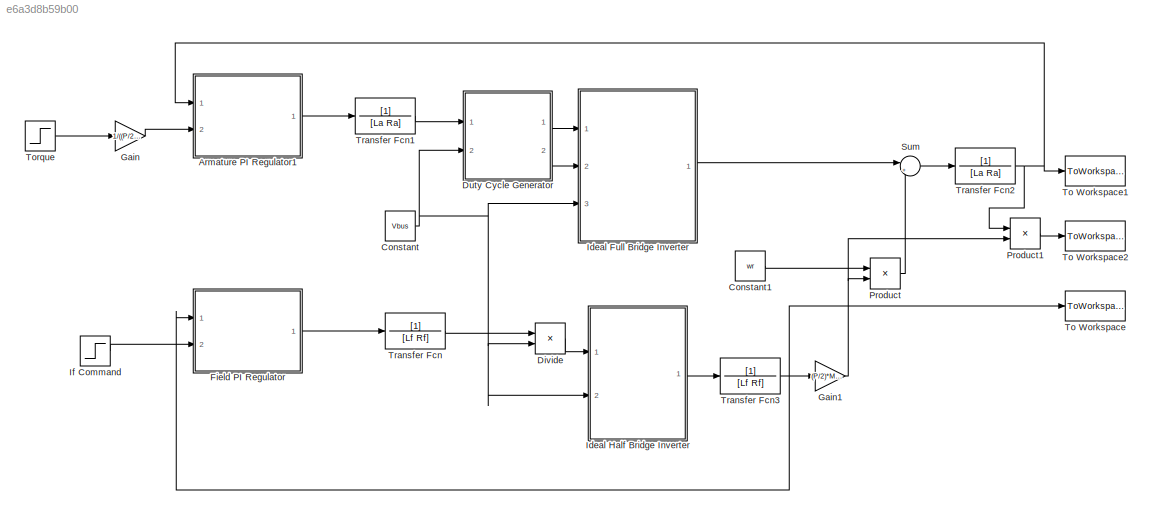
MODEL slx_e6a3d8b59b00
KIND model
CONFIG AbsTol = auto
CONFIG FixedStep = auto
CONFIG MaxStep = auto
CONFIG MinStep = auto
CONFIG RelTol = 1e-3
CONFIG SampleTimeConstraint = Unconstrained
CONFIG Solver = VariableStepAuto
CONFIG SolverMode = Auto
CONFIG SolverName = VariableStepAuto
CONFIG StartTime = 0.0
CONFIG StopTime = .2
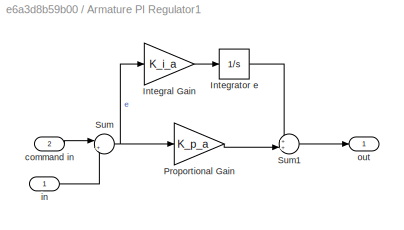
BLOCK [SubSystem] Armature PI Regulator1
  Ports = [2, 1]
  RequestExecContextInheritance = off
  Variant = off
BLOCK [Gain] Armature PI Regulator1/Integral Gain
  Gain = K_i_a
BLOCK [Integrator] Armature PI Regulator1/Integrator e
  Ports = [1, 1]
BLOCK [Gain] Armature PI Regulator1/Proportional Gain
  Gain = K_p_a
BLOCK [Sum] Armature PI Regulator1/Sum
  IconShape = round
  InputSameDT = off
  Inputs = |+-
  OutDataTypeStr = Inherit: Inherit via internal rule
  Ports = [2, 1]
BLOCK [Sum] Armature PI Regulator1/Sum1
  IconShape = round
  InputSameDT = off
  Inputs = ++|
  OutDataTypeStr = Inherit: Inherit via internal rule
  Ports = [2, 1]
BLOCK [Inport] Armature PI Regulator1/command in
  IconDisplay = Port number
  Port = 2
BLOCK [Inport] Armature PI Regulator1/in
  IconDisplay = Port number
BLOCK [Outport] Armature PI Regulator1/out
  IconDisplay = Port number
BLOCK [Constant] Constant
  Value = Vbus
BLOCK [Constant] Constant1
  Value = wr
BLOCK [Product] Divide
  InputSameDT = off
  Inputs = */
  OutDataTypeStr = Inherit: Inherit via internal rule
  Ports = [2, 1]
  RndMeth = Floor
  SaturateOnIntegerOverflow = off
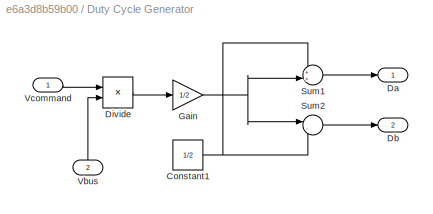
BLOCK [SubSystem] Duty Cycle Generator 
  Ports = [2, 2]
  RequestExecContextInheritance = off
  Variant = off
BLOCK [Constant] Duty Cycle Generator /Constant1
  Value = 1/2
BLOCK [Outport] Duty Cycle Generator /Da
  IconDisplay = Port number
BLOCK [Outport] Duty Cycle Generator /Db
  IconDisplay = Port number
  Port = 2
BLOCK [Product] Duty Cycle Generator /Divide
  InputSameDT = off
  Inputs = */
  OutDataTypeStr = Inherit: Inherit via internal rule
  Ports = [2, 1]
  RndMeth = Floor
  SaturateOnIntegerOverflow = off
BLOCK [Gain] Duty Cycle Generator /Gain
  Gain = 1/2
  OutDataTypeStr = Inherit: Inherit via internal rule
  ParamDataTypeStr = Inherit: Inherit via internal rule
  SaturateOnIntegerOverflow = off
BLOCK [Sum] Duty Cycle Generator /Sum1
  IconShape = round
  InputSameDT = off
  Inputs = ++|
  OutDataTypeStr = Inherit: Inherit via internal rule
  Ports = [2, 1]
  SaturateOnIntegerOverflow = off
BLOCK [Sum] Duty Cycle Generator /Sum2
  IconShape = round
  InputSameDT = off
  Inputs = |-+
  OutDataTypeStr = Inherit: Inherit via internal rule
  Ports = [2, 1]
  SaturateOnIntegerOverflow = off
BLOCK [Inport] Duty Cycle Generator /Vbus
  IconDisplay = Port number
  Port = 2
BLOCK [Inport] Duty Cycle Generator /Vcommand
  IconDisplay = Port number
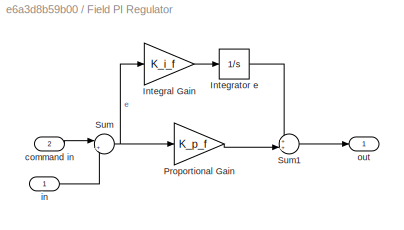
BLOCK [SubSystem] Field PI Regulator
  Ports = [2, 1]
  RequestExecContextInheritance = off
  Variant = off
BLOCK [Gain] Field PI Regulator/Integral Gain
  Gain = K_i_f
BLOCK [Integrator] Field PI Regulator/Integrator e
  Ports = [1, 1]
BLOCK [Gain] Field PI Regulator/Proportional Gain
  Gain = K_p_f
BLOCK [Sum] Field PI Regulator/Sum
  IconShape = round
  InputSameDT = off
  Inputs = |+-
  OutDataTypeStr = Inherit: Inherit via internal rule
  Ports = [2, 1]
BLOCK [Sum] Field PI Regulator/Sum1
  IconShape = round
  InputSameDT = off
  Inputs = ++|
  OutDataTypeStr = Inherit: Inherit via internal rule
  Ports = [2, 1]
BLOCK [Inport] Field PI Regulator/command in
  IconDisplay = Port number
  Port = 2
BLOCK [Inport] Field PI Regulator/in
  IconDisplay = Port number
BLOCK [Outport] Field PI Regulator/out
  IconDisplay = Port number
BLOCK [Gain] Gain
  Gain = 1/((P/2)*Maf)
  OutDataTypeStr = Inherit: Inherit via internal rule
  ParamDataTypeStr = Inherit: Inherit via internal rule
  SaturateOnIntegerOverflow = off
BLOCK [Gain] Gain1
  Gain = (P/2)*Maf
  OutDataTypeStr = Inherit: Inherit via internal rule
  ParamDataTypeStr = Inherit: Inherit via internal rule
  SaturateOnIntegerOverflow = off
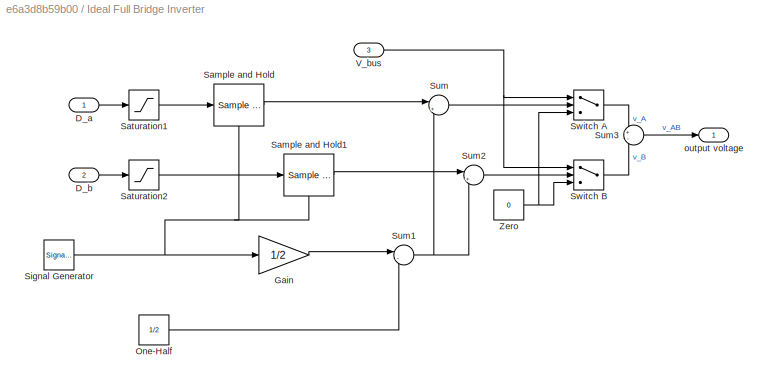
BLOCK [SubSystem] Ideal Full Bridge Inverter 
  Ports = [3, 1]
  RequestExecContextInheritance = off
  Variant = off
BLOCK [Inport] Ideal Full Bridge Inverter /D_a
  IconDisplay = Port number
BLOCK [Inport] Ideal Full Bridge Inverter /D_b
  IconDisplay = Port number
  Port = 2
BLOCK [Gain] Ideal Full Bridge Inverter /Gain
  Gain = 1/2
BLOCK [Constant] Ideal Full Bridge Inverter /One-Half
  Value = 1/2
BLOCK [Reference] Ideal Full Bridge Inverter /Sample and Hold  REF=dspsigops/Sample
and Hold
  Ports = [1, 1, 0, 1]
  SourceBlock = dspsigops/Sample\nand Hold
  SourceType = Sample and Hold
BLOCK [Reference] Ideal Full Bridge Inverter /Sample and Hold1  REF=dspsigops/Sample
and Hold
  Ports = [1, 1, 0, 1]
  SourceBlock = dspsigops/Sample\nand Hold
  SourceType = Sample and Hold
BLOCK [Saturate] Ideal Full Bridge Inverter /Saturation1
  InputPortMap = u0
  LowerLimit = 0
  Ports = [1, 1]
  UpperLimit = 1
BLOCK [Saturate] Ideal Full Bridge Inverter /Saturation2
  InputPortMap = u0
  LowerLimit = 0
  Ports = [1, 1]
  UpperLimit = 1
BLOCK [SignalGenerator] Ideal Full Bridge Inverter /Signal Generator
  Frequency = f_sw
  Ports = [0, 1]
  WaveForm = sawtooth
BLOCK [Sum] Ideal Full Bridge Inverter /Sum
  IconShape = round
  InputSameDT = off
  Inputs = |+-
  OutDataTypeStr = Inherit: Inherit via internal rule
  Ports = [2, 1]
BLOCK [Sum] Ideal Full Bridge Inverter /Sum1
  IconShape = round
  InputSameDT = off
  Inputs = |-+
  OutDataTypeStr = Inherit: Inherit via internal rule
  Ports = [2, 1]
BLOCK [Sum] Ideal Full Bridge Inverter /Sum2
  IconShape = round
  InputSameDT = off
  Inputs = |+-
  OutDataTypeStr = Inherit: Inherit via internal rule
  Ports = [2, 1]
BLOCK [Sum] Ideal Full Bridge Inverter /Sum3
  IconShape = round
  InputSameDT = off
  Inputs = +-
  OutDataTypeStr = Inherit: Inherit via internal rule
  Ports = [2, 1]
BLOCK [Switch] Ideal Full Bridge Inverter /Switch A
  InputSameDT = off
BLOCK [Switch] Ideal Full Bridge Inverter /Switch B
  InputSameDT = off
BLOCK [Inport] Ideal Full Bridge Inverter /V_bus
  IconDisplay = Port number
  Port = 3
BLOCK [Constant] Ideal Full Bridge Inverter /Zero
  Value = 0
BLOCK [Outport] Ideal Full Bridge Inverter /output voltage
  IconDisplay = Port number
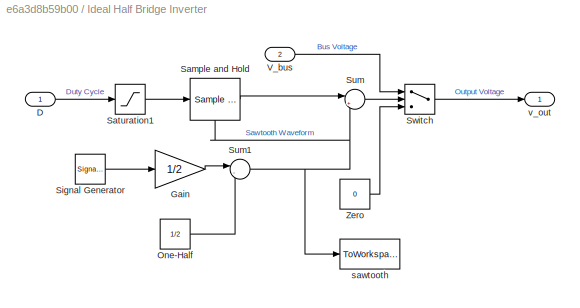
BLOCK [SubSystem] Ideal Half Bridge Inverter 
  Ports = [2, 1]
  RequestExecContextInheritance = off
  Variant = off
BLOCK [Inport] Ideal Half Bridge Inverter /D
  IconDisplay = Port number
BLOCK [Gain] Ideal Half Bridge Inverter /Gain
  Gain = 1/2
BLOCK [Constant] Ideal Half Bridge Inverter /One-Half
  Value = 1/2
BLOCK [Reference] Ideal Half Bridge Inverter /Sample and Hold  REF=dspsigops/Sample
and Hold
  Ports = [1, 1, 0, 1]
  SourceBlock = dspsigops/Sample\nand Hold
  SourceType = Sample and Hold
BLOCK [Saturate] Ideal Half Bridge Inverter /Saturation1
  InputPortMap = u0
  LowerLimit = 0
  Ports = [1, 1]
  UpperLimit = 1
BLOCK [SignalGenerator] Ideal Half Bridge Inverter /Signal Generator
  Frequency = 10e3
  Ports = [0, 1]
  WaveForm = sawtooth
BLOCK [Sum] Ideal Half Bridge Inverter /Sum
  IconShape = round
  InputSameDT = off
  Inputs = |+-
  OutDataTypeStr = Inherit: Inherit via internal rule
  Ports = [2, 1]
BLOCK [Sum] Ideal Half Bridge Inverter /Sum1
  IconShape = round
  InputSameDT = off
  Inputs = |-+
  OutDataTypeStr = Inherit: Inherit via internal rule
  Ports = [2, 1]
BLOCK [Switch] Ideal Half Bridge Inverter /Switch
  InputSameDT = off
BLOCK [Inport] Ideal Half Bridge Inverter /V_bus
  IconDisplay = Port number
  Port = 2
BLOCK [Constant] Ideal Half Bridge Inverter /Zero
  Value = 0
BLOCK [ToWorkspace] Ideal Half Bridge Inverter /sawtooth
  MaxDataPoints = inf
  Ports = [1]
  SampleTime = -1
  VariableName = sawtooth
BLOCK [Outport] Ideal Half Bridge Inverter /v_out
  IconDisplay = Port number
BLOCK [Step] If Command
  After = If_desired
  SampleTime = 0
  Time = .002
BLOCK [Product] Product
  InputSameDT = off
  OutDataTypeStr = Inherit: Inherit via internal rule
  Ports = [2, 1]
  RndMeth = Floor
  SaturateOnIntegerOverflow = off
BLOCK [Product] Product1
  InputSameDT = off
  OutDataTypeStr = Inherit: Inherit via internal rule
  Ports = [2, 1]
  RndMeth = Floor
  SaturateOnIntegerOverflow = off
BLOCK [Sum] Sum
  IconShape = round
  InputSameDT = off
  Inputs = |+-
  OutDataTypeStr = Inherit: Inherit via internal rule
  Ports = [2, 1]
  SaturateOnIntegerOverflow = off
BLOCK [ToWorkspace] To Workspace
  FixptAsFi = on
  MaxDataPoints = inf
  Ports = [1]
  SampleTime = -1
  Save2DSignal = 3-D array (concatenate along third dimension)
  VariableName = If_out
BLOCK [ToWorkspace] To Workspace1
  FixptAsFi = on
  MaxDataPoints = inf
  Ports = [1]
  SampleTime = -1
  Save2DSignal = 3-D array (concatenate along third dimension)
  VariableName = Ia_out
BLOCK [ToWorkspace] To Workspace2
  FixptAsFi = on
  MaxDataPoints = inf
  Ports = [1]
  SampleTime = -1
  Save2DSignal = 3-D array (concatenate along third dimension)
  VariableName = Te_out
BLOCK [Step] Torque
  After = T_step
  SampleTime = 0
  Time = .002
BLOCK [TransferFcn] Transfer Fcn
  Denominator = [Lf Rf]
BLOCK [TransferFcn] Transfer Fcn1
  Denominator = [La Ra]
BLOCK [TransferFcn] Transfer Fcn2
  Denominator = [La Ra]
BLOCK [TransferFcn] Transfer Fcn3
  Denominator = [Lf Rf]
LINE Armature PI Regulator1/Integral Gain:1 -> Armature PI Regulator1/Integrator e:1
LINE Armature PI Regulator1/Integrator e:1 -> Armature PI Regulator1/Sum1:1
LINE Armature PI Regulator1/Proportional Gain:1 -> Armature PI Regulator1/Sum1:2
LINE Armature PI Regulator1/Sum1:1 -> Armature PI Regulator1/out:1
NET Armature PI Regulator1/Sum:1 -> Armature PI Regulator1/Integral Gain:1, Armature PI Regulator1/Proportional Gain:1
LINE Armature PI Regulator1/command in:1 -> Armature PI Regulator1/Sum:1
LINE Armature PI Regulator1/in:1 -> Armature PI Regulator1/Sum:2
LINE Armature PI Regulator1:1 -> Transfer Fcn1:1
LINE Constant1:1 -> Product:1
NET Constant:1 -> Divide:2, Duty Cycle Generator :2, Ideal Full Bridge Inverter :3, Ideal Half Bridge Inverter :2
LINE Divide:1 -> Ideal Half Bridge Inverter :1
NET Duty Cycle Generator /Constant1:1 -> Duty Cycle Generator /Sum1:1, Duty Cycle Generator /Sum2:2
LINE Duty Cycle Generator /Divide:1 -> Duty Cycle Generator /Gain:1
NET Duty Cycle Generator /Gain:1 -> Duty Cycle Generator /Sum1:2, Duty Cycle Generator /Sum2:1
LINE Duty Cycle Generator /Sum1:1 -> Duty Cycle Generator /Da:1
LINE Duty Cycle Generator /Sum2:1 -> Duty Cycle Generator /Db:1
LINE Duty Cycle Generator /Vbus:1 -> Duty Cycle Generator /Divide:2
LINE Duty Cycle Generator /Vcommand:1 -> Duty Cycle Generator /Divide:1
LINE Duty Cycle Generator :1 -> Ideal Full Bridge Inverter :1
LINE Duty Cycle Generator :2 -> Ideal Full Bridge Inverter :2
LINE Field PI Regulator/Integral Gain:1 -> Field PI Regulator/Integrator e:1
LINE Field PI Regulator/Integrator e:1 -> Field PI Regulator/Sum1:1
LINE Field PI Regulator/Proportional Gain:1 -> Field PI Regulator/Sum1:2
LINE Field PI Regulator/Sum1:1 -> Field PI Regulator/out:1
NET Field PI Regulator/Sum:1 -> Field PI Regulator/Integral Gain:1, Field PI Regulator/Proportional Gain:1
LINE Field PI Regulator/command in:1 -> Field PI Regulator/Sum:1
LINE Field PI Regulator/in:1 -> Field PI Regulator/Sum:2
LINE Field PI Regulator:1 -> Transfer Fcn:1
NET Gain1:1 -> Product1:2, Product:2
LINE Gain:1 -> Armature PI Regulator1:2
LINE Ideal Full Bridge Inverter /D_a:1 -> Ideal Full Bridge Inverter /Saturation1:1
LINE Ideal Full Bridge Inverter /D_b:1 -> Ideal Full Bridge Inverter /Saturation2:1
LINE Ideal Full Bridge Inverter /Gain:1 -> Ideal Full Bridge Inverter /Sum1:1
LINE Ideal Full Bridge Inverter /One-Half:1 -> Ideal Full Bridge Inverter /Sum1:2
LINE Ideal Full Bridge Inverter /Sample and Hold1:1 -> Ideal Full Bridge Inverter /Sum2:1
LINE Ideal Full Bridge Inverter /Sample and Hold:1 -> Ideal Full Bridge Inverter /Sum:1
LINE Ideal Full Bridge Inverter /Saturation1:1 -> Ideal Full Bridge Inverter /Sample and Hold:1
LINE Ideal Full Bridge Inverter /Saturation2:1 -> Ideal Full Bridge Inverter /Sample and Hold1:1
NET Ideal Full Bridge Inverter /Signal Generator:1 -> Ideal Full Bridge Inverter /Gain:1, Ideal Full Bridge Inverter /Sample and Hold1:trigger, Ideal Full Bridge Inverter /Sample and Hold:trigger
NET Ideal Full Bridge Inverter /Sum1:1 -> Ideal Full Bridge Inverter /Sum2:2, Ideal Full Bridge Inverter /Sum:2
LINE Ideal Full Bridge Inverter /Sum2:1 -> Ideal Full Bridge Inverter /Switch B:2
LINE Ideal Full Bridge Inverter /Sum3:1 -> Ideal Full Bridge Inverter /output voltage:1
LINE Ideal Full Bridge Inverter /Sum:1 -> Ideal Full Bridge Inverter /Switch A:2
LINE Ideal Full Bridge Inverter /Switch A:1 -> Ideal Full Bridge Inverter /Sum3:1
LINE Ideal Full Bridge Inverter /Switch B:1 -> Ideal Full Bridge Inverter /Sum3:2
NET Ideal Full Bridge Inverter /V_bus:1 -> Ideal Full Bridge Inverter /Switch A:1, Ideal Full Bridge Inverter /Switch B:1
NET Ideal Full Bridge Inverter /Zero:1 -> Ideal Full Bridge Inverter /Switch A:3, Ideal Full Bridge Inverter /Switch B:3
LINE Ideal Full Bridge Inverter :1 -> Sum:1
LINE Ideal Half Bridge Inverter /D:1 -> Ideal Half Bridge Inverter /Saturation1:1
LINE Ideal Half Bridge Inverter /Gain:1 -> Ideal Half Bridge Inverter /Sum1:1
LINE Ideal Half Bridge Inverter /One-Half:1 -> Ideal Half Bridge Inverter /Sum1:2
LINE Ideal Half Bridge Inverter /Sample and Hold:1 -> Ideal Half Bridge Inverter /Sum:1
LINE Ideal Half Bridge Inverter /Saturation1:1 -> Ideal Half Bridge Inverter /Sample and Hold:1
LINE Ideal Half Bridge Inverter /Signal Generator:1 -> Ideal Half Bridge Inverter /Gain:1
NET Ideal Half Bridge Inverter /Sum1:1 -> Ideal Half Bridge Inverter /Sample and Hold:trigger, Ideal Half Bridge Inverter /Sum:2, Ideal Half Bridge Inverter /sawtooth:1
LINE Ideal Half Bridge Inverter /Sum:1 -> Ideal Half Bridge Inverter /Switch:2
LINE Ideal Half Bridge Inverter /Switch:1 -> Ideal Half Bridge Inverter /v_out:1
LINE Ideal Half Bridge Inverter /V_bus:1 -> Ideal Half Bridge Inverter /Switch:1
LINE Ideal Half Bridge Inverter /Zero:1 -> Ideal Half Bridge Inverter /Switch:3
LINE Ideal Half Bridge Inverter :1 -> Transfer Fcn3:1
LINE If Command:1 -> Field PI Regulator:2
LINE Product1:1 -> To Workspace2:1
LINE Product:1 -> Sum:2
LINE Sum:1 -> Transfer Fcn2:1
LINE Torque:1 -> Gain:1
LINE Transfer Fcn1:1 -> Duty Cycle Generator :1
NET Transfer Fcn2:1 -> Armature PI Regulator1:1, Product1:1, To Workspace1:1
NET Transfer Fcn3:1 -> Field PI Regulator:1, Gain1:1, To Workspace:1
LINE Transfer Fcn:1 -> Divide:1
note: NET lines group one-source signal fan-out (src -> all destinations, sorted); 1:1 wires keep LINE
